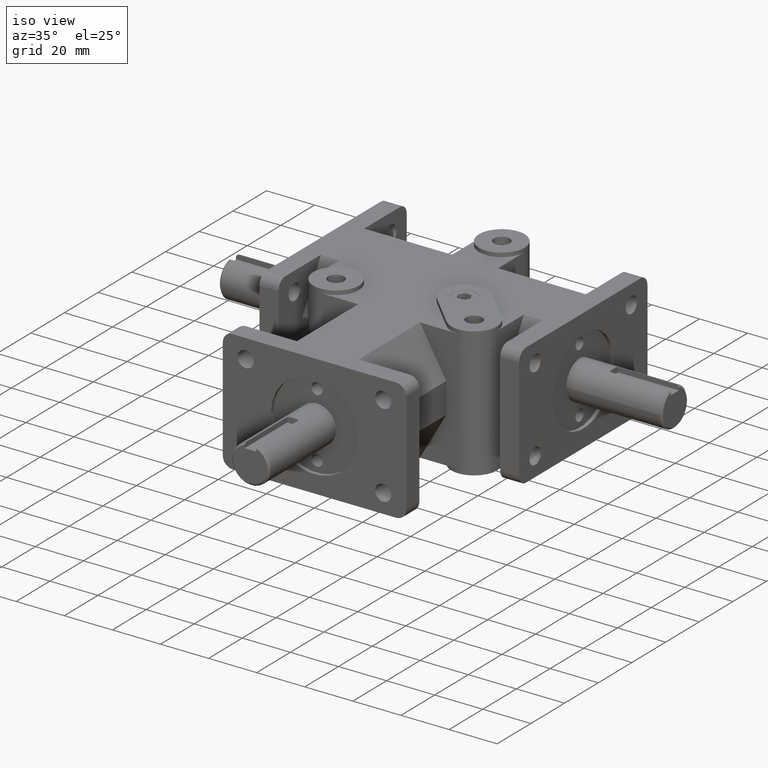
[diagram: clean part render]
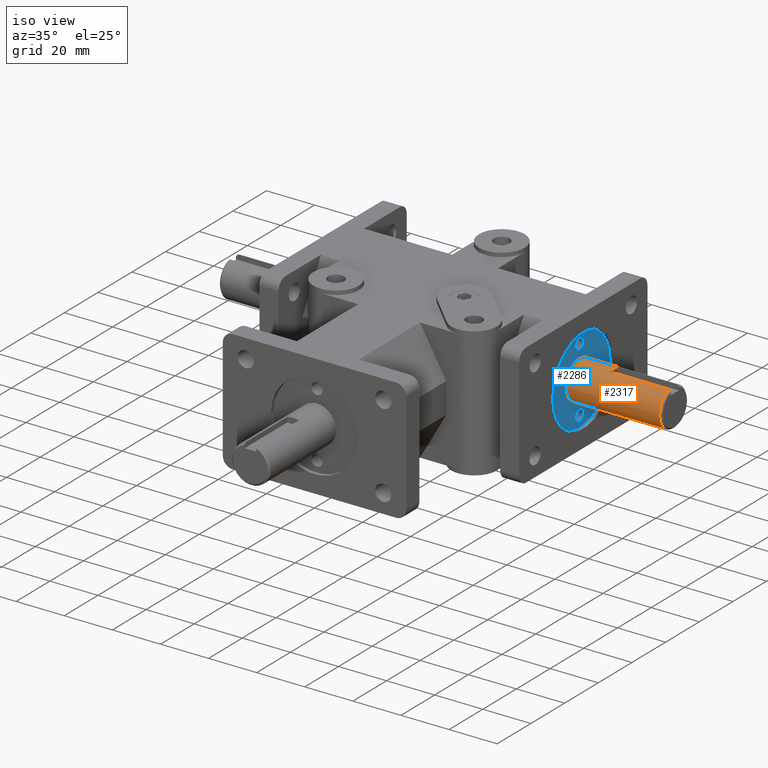
[diagram: same view with the hole feature highlighted: cylindrical wall and planar end face, labeled with their STEP entity ids]
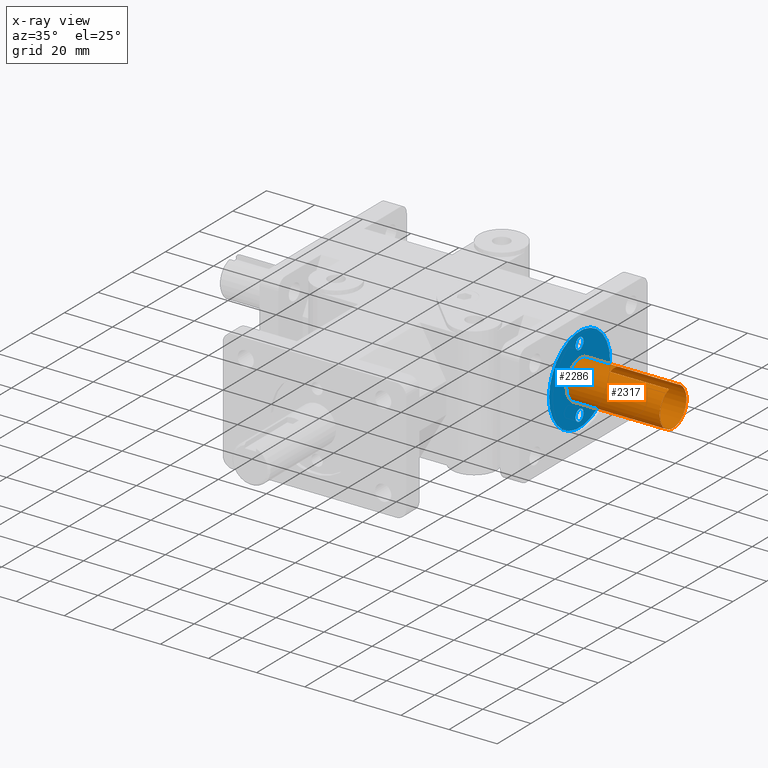
[diagram: x-ray of the same camera — body ghosted, the hole faces saturated]
A machine part, iso view. The highlighted faces form one hole feature of diameter 15.875 mm: the cylindrical wall (entity #2317, orange) and its adjacent planar end face (entity #2286, blue) — they share a circular edge in the B-rep.
The next image is the same camera in x-ray (body ghosted, the hole faces saturated) — the bore reads through the body.
Wall:
#198=FACE_OUTER_BOUND('',#350,.T.);
#350=EDGE_LOOP('',(#1827,#1828,#1829,#1830,#1831,#1832,#1833,#1834));
#567=LINE('',#3735,#789);
#568=LINE('',#3738,#790);
#569=LINE('',#3739,#791);
#789=VECTOR('',#3006,1.);
#790=VECTOR('',#3009,1.);
#791=VECTOR('',#3010,0.3125);
#916=CIRCLE('',#2450,0.3125);
#965=CIRCLE('',#2529,0.3125);
#966=CIRCLE('',#2530,0.3125);
#968=CIRCLE('',#2533,0.3125);
#1022=VERTEX_POINT('',#3409);
#1148=VERTEX_POINT('',#3720);
#1149=VERTEX_POINT('',#3724);
#1150=VERTEX_POINT('',#3726);
#1152=VERTEX_POINT('',#3734);
#1153=VERTEX_POINT('',#3736);
#1252=EDGE_CURVE('',#1022,#1022,#916,.T.);
#1408=EDGE_CURVE('',#1148,#1149,#965,.T.);
#1409=EDGE_CURVE('',#1149,#1150,#966,.T.);
#1412=EDGE_CURVE('',#1148,#1152,#567,.T.);
#1413=EDGE_CURVE('',#1152,#1153,#968,.T.);
#1414=EDGE_CURVE('',#1153,#1150,#568,.T.);
#1415=EDGE_CURVE('',#1149,#1022,#569,.T.);
#1827=ORIENTED_EDGE('',*,*,#1408,.F.);
#1828=ORIENTED_EDGE('',*,*,#1412,.T.);
#1829=ORIENTED_EDGE('',*,*,#1413,.T.);
#1830=ORIENTED_EDGE('',*,*,#1414,.T.);
#1831=ORIENTED_EDGE('',*,*,#1409,.F.);
#1832=ORIENTED_EDGE('',*,*,#1415,.T.);
#1833=ORIENTED_EDGE('',*,*,#1252,.F.);
#1834=ORIENTED_EDGE('',*,*,#1415,.F.);
#2247=CYLINDRICAL_SURFACE('',#2532,0.3125);
#2317=ADVANCED_FACE('',(#198),#2247,.T.);
#2450=AXIS2_PLACEMENT_3D('',#3410,#2734,#2735);
#2529=AXIS2_PLACEMENT_3D('',#3725,#2998,#2999);
#2530=AXIS2_PLACEMENT_3D('',#3727,#3000,#3001);
#2532=AXIS2_PLACEMENT_3D('',#3733,#3004,#3005);
#2533=AXIS2_PLACEMENT_3D('',#3737,#3007,#3008);
#2734=DIRECTION('center_axis',(-1.,0.,0.));
#2735=DIRECTION('ref_axis',(0.,1.,0.));
#2998=DIRECTION('center_axis',(1.,-6.12303176911189E-17,0.));
#2999=DIRECTION('ref_axis',(6.12303176911189E-17,1.,0.));
#3000=DIRECTION('center_axis',(1.,-6.12303176911189E-17,0.));
#3001=DIRECTION('ref_axis',(6.12303176911189E-17,1.,0.));
#3004=DIRECTION('center_axis',(1.,-6.12303176911189E-17,0.));
#3005=DIRECTION('ref_axis',(6.12303176911189E-17,1.,0.));
#3006=DIRECTION('',(-1.,6.12303176911189E-17,0.));
#3007=DIRECTION('center_axis',(-1.,6.12303176911189E-17,0.));
#3008=DIRECTION('ref_axis',(6.12303176911189E-17,1.,0.));
#3009=DIRECTION('',(1.,-6.12303176911189E-17,0.));
#3010=DIRECTION('',(-1.,6.12303176911189E-17,0.));
#3409=CARTESIAN_POINT('',(2.065,2.9375,-3.82702124733548E-17));
#3410=CARTESIAN_POINT('Origin',(2.065,3.25,0.));
#3720=CARTESIAN_POINT('',(3.595,3.15625,0.298106000442796));
#3724=CARTESIAN_POINT('',(3.595,2.9375,-3.82702124733548E-17));
#3725=CARTESIAN_POINT('Origin',(3.595,3.25,0.));
#3726=CARTESIAN_POINT('',(3.595,3.34375,0.298106000442796));
#3727=CARTESIAN_POINT('Origin',(3.595,3.25,0.));
#3733=CARTESIAN_POINT('Origin',(2.125,3.25,0.));
#3734=CARTESIAN_POINT('',(2.625,3.15625,0.298106000442796));
#3735=CARTESIAN_POINT('',(2.125,3.15625,0.298106000442796));
#3736=CARTESIAN_POINT('',(2.625,3.34375,0.298106000442796));
#3737=CARTESIAN_POINT('Origin',(2.625,3.25,0.));
#3738=CARTESIAN_POINT('',(2.125,3.34375,0.298106000442796));
#3739=CARTESIAN_POINT('',(2.125,2.9375,-3.82702124733548E-17));
End face:
#31=FACE_BOUND('',#303,.T.);
#32=FACE_BOUND('',#304,.T.);
#33=FACE_BOUND('',#305,.T.);
#77=PLANE('',#2449);
#167=FACE_OUTER_BOUND('',#302,.T.);
#302=EDGE_LOOP('',(#1607));
#303=EDGE_LOOP('',(#1608));
#304=EDGE_LOOP('',(#1609));
#305=EDGE_LOOP('',(#1610));
#900=CIRCLE('',#2421,0.0935);
#902=CIRCLE('',#2425,0.0935);
#911=CIRCLE('',#2441,0.714);
#916=CIRCLE('',#2450,0.3125);
#1006=VERTEX_POINT('',#3357);
#1008=VERTEX_POINT('',#3364);
#1017=VERTEX_POINT('',#3393);
#1022=VERTEX_POINT('',#3409);
#1229=EDGE_CURVE('',#1006,#1006,#900,.T.);
#1232=EDGE_CURVE('',#1008,#1008,#902,.T.);
#1246=EDGE_CURVE('',#1017,#1017,#911,.T.);
#1252=EDGE_CURVE('',#1022,#1022,#916,.T.);
#1607=ORIENTED_EDGE('',*,*,#1246,.T.);
#1608=ORIENTED_EDGE('',*,*,#1252,.T.);
#1609=ORIENTED_EDGE('',*,*,#1229,.T.);
#1610=ORIENTED_EDGE('',*,*,#1232,.T.);
#2286=ADVANCED_FACE('',(#167,#31,#32,#33),#77,.T.);
#2421=AXIS2_PLACEMENT_3D('',#3358,#2669,#2670);
#2425=AXIS2_PLACEMENT_3D('',#3365,#2678,#2679);
#2441=AXIS2_PLACEMENT_3D('',#3395,#2715,#2716);
#2449=AXIS2_PLACEMENT_3D('',#3408,#2732,#2733);
#2450=AXIS2_PLACEMENT_3D('',#3410,#2734,#2735);
#2669=DIRECTION('center_axis',(-1.,0.,0.));
#2670=DIRECTION('ref_axis',(0.,1.,0.));
#2678=DIRECTION('center_axis',(-1.,0.,0.));
#2679=DIRECTION('ref_axis',(0.,1.,0.));
#2715=DIRECTION('center_axis',(1.,0.,0.));
#2716=DIRECTION('ref_axis',(0.,1.,0.));
#2732=DIRECTION('center_axis',(1.,0.,0.));
#2733=DIRECTION('ref_axis',(0.,-1.,0.));
#2734=DIRECTION('center_axis',(-1.,0.,0.));
#2735=DIRECTION('ref_axis',(0.,1.,0.));
#3357=CARTESIAN_POINT('',(2.065,3.1565,-0.53));
#3358=CARTESIAN_POINT('Origin',(2.065,3.25,-0.53));
#3364=CARTESIAN_POINT('',(2.065,3.1565,0.53));
#3365=CARTESIAN_POINT('Origin',(2.065,3.25,0.53));
#3393=CARTESIAN_POINT('',(2.065,2.536,8.7439781459121E-17));
#3395=CARTESIAN_POINT('Origin',(2.065,3.25,0.));
#3408=CARTESIAN_POINT('Origin',(2.065,3.30409090909091,-8.20154589760046E-18));
#3409=CARTESIAN_POINT('',(2.065,2.9375,-3.82702124733548E-17));
#3410=CARTESIAN_POINT('Origin',(2.065,3.25,0.));